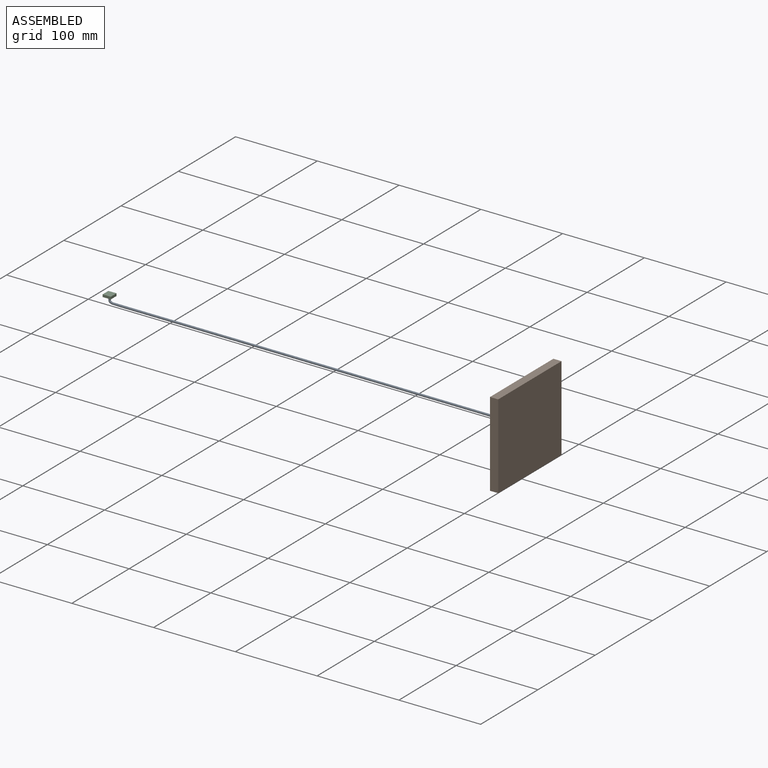
[diagram: assembled view]
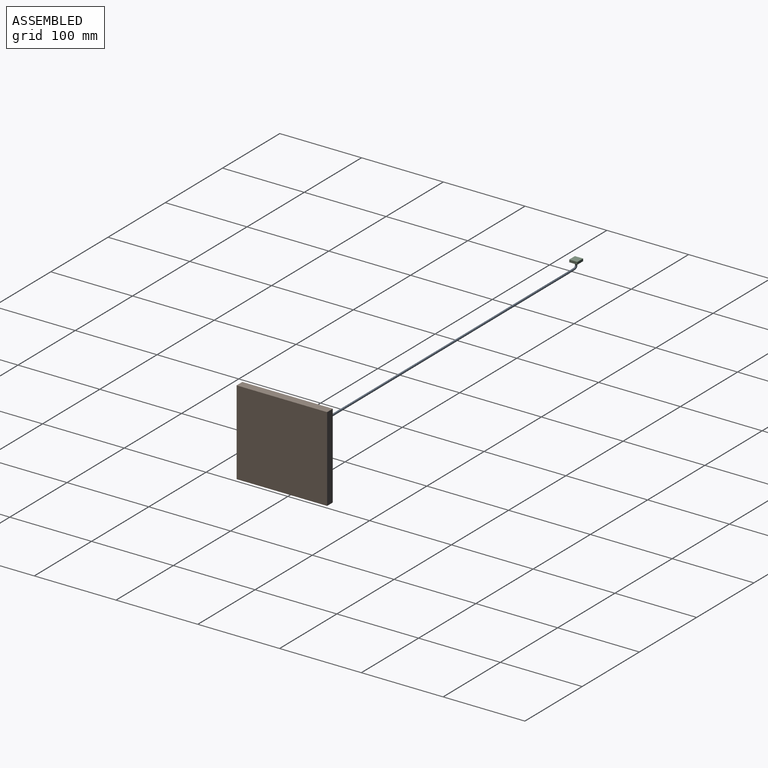
[diagram: assembled view, second angle]
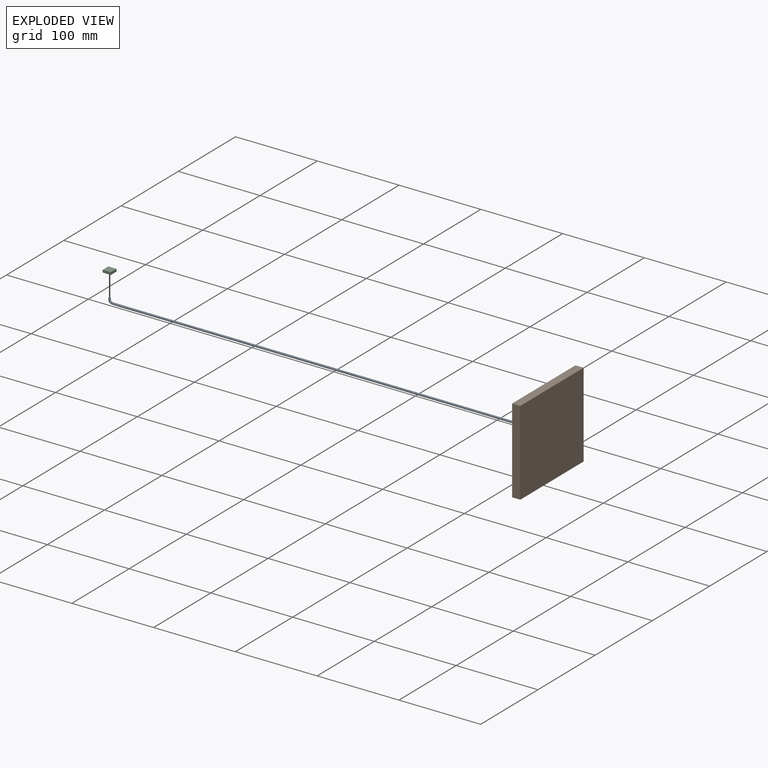
[diagram: exploded view]
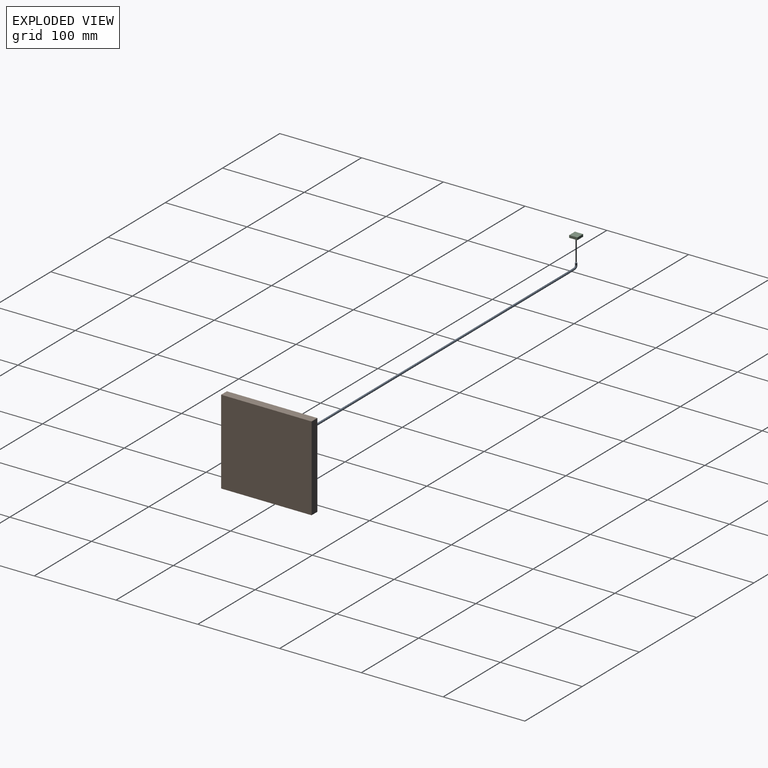
[diagram: exploded view, second angle]
ASSEMBLY  parts=3 mates=2
PART A: 3 faces, bbox 501.3x5x7.1 mm
  f0: plane 2.5x2.5mm, normal (0,0,1), area 4.9mm2, adj f2
  f1: plane 2.5x2.5mm, normal (1,0,0), area 4.9mm2, adj f2
  f2: bspline ~501.29x7.12mm, area 3959.2mm2, adj f0,f1
PART B: 13 faces, bbox 14x110.6x103.7 mm
  f0: plane 110.63x103.66mm, normal (-1,0,0), area 11367.5mm2, adj f1,f2,f3,f4,f6,f7,f8,f9
  f1: plane 103.66x10mm, normal (0,1,0), area 1036.6mm2, adj f0,f2,f4,f5
  f2: plane 110.63x10mm, normal (0,0,1), area 1106.3mm2, adj f0,f1,f3,f5
  f3: plane 103.66x10mm, normal (0,-1,0), area 1036.6mm2, adj f0,f2,f4,f5
  f4: plane 110.63x10mm, normal (0,0,-1), area 1106.3mm2, adj f0,f1,f3,f5
  f5: plane 110.63x103.66mm, normal (1,0,0), area 11467.5mm2, adj f1,f2,f3,f4
  f6: plane 10x3mm, normal (0,1,0), area 30mm2, adj f0,f7,f9,f10
  f7: plane 10x3mm, normal (0,0,1), area 30mm2, adj f0,f6,f8,f10
  f8: plane 10x3mm, normal (0,-1,0), area 30mm2, adj f0,f7,f9,f10
  f9: plane 10x3mm, normal (0,0,-1), area 30mm2, adj f0,f6,f8,f10
  f10: plane 10x10mm, normal (-1,0,0), area 43.3mm2, adj f6,f7,f8,f9,f12
  f11: plane 2.5x2.5mm, normal (-1,0,0), area 4.9mm2, adj f12
  f12: torus R=4.25mm, axis (1,0,0), area 54.5mm2, adj f10,f11
PART C: 8 faces, bbox 10x10x4 mm
  f0: plane 10x3mm, normal (1,0,0), area 30mm2, adj f1,f3,f4,f5
  f1: plane 10x3mm, normal (0,1,0), area 30mm2, adj f0,f2,f4,f5
  f2: plane 10x3mm, normal (-1,0,0), area 30mm2, adj f1,f3,f4,f5
  f3: plane 10x3mm, normal (0,-1,0), area 30mm2, adj f0,f2,f4,f5
  f4: plane 10x10mm, normal (0,0,1), area 100mm2, adj f0,f1,f2,f3
  f5: plane 10x10mm, normal (0,0,-1), area 43.3mm2, adj f0,f1,f2,f3,f7
  f6: plane 2.5x2.5mm, normal (0,0,-1), area 4.9mm2, adj f7
  f7: torus R=4.25mm, axis (0,0,1), area 54.5mm2, adj f5,f6
PLACE A rot(axis=(0,1,0),0deg) t=(-503.82,-0.11,5.16)mm
PLACE B t=(0.18,-0.11,-0.8)mm fixed
PLACE C rot(axis=(0,1,0),0deg) t=(-503.82,-0.11,6.16)mm
MATE fastened A.f0 <-> C.f7  axis (0,0,1) through (-503.82,-0.11,5.16)mm
MATE fastened A.f1 <-> B.f12  axis (1,0,0) through (-3.82,-0.11,-0.8)mm
